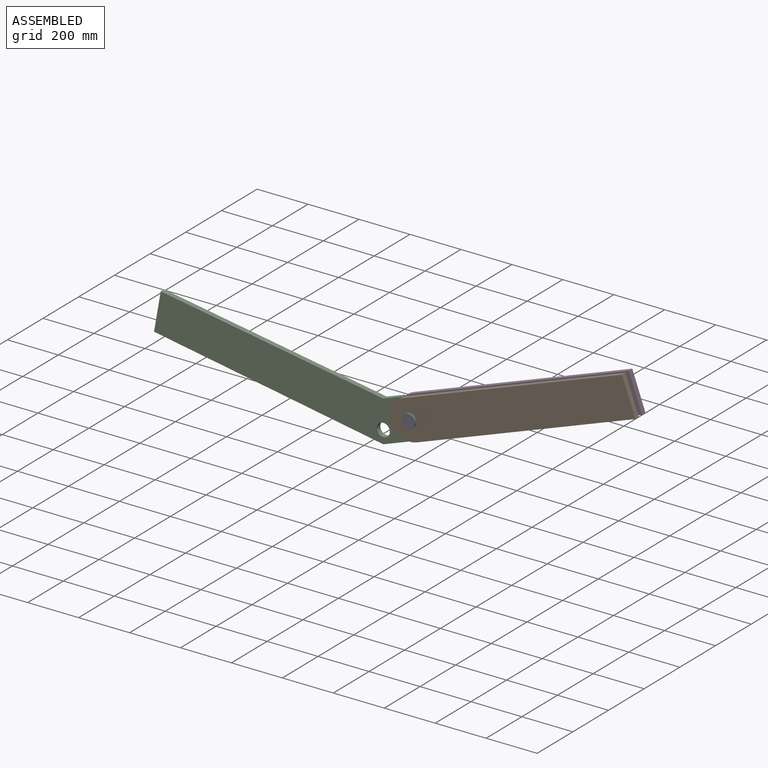
[diagram: assembled view]
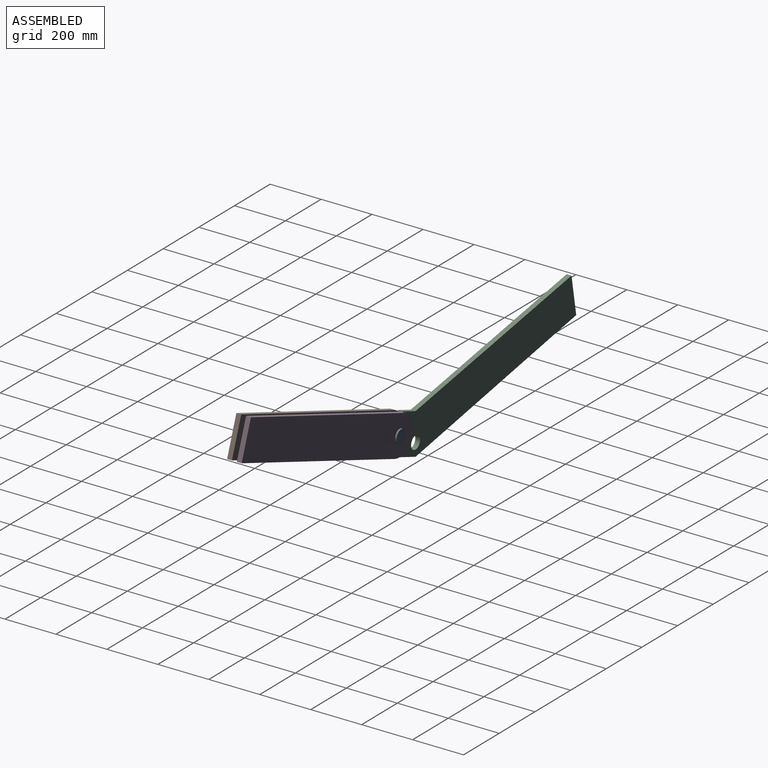
[diagram: assembled view, second angle]
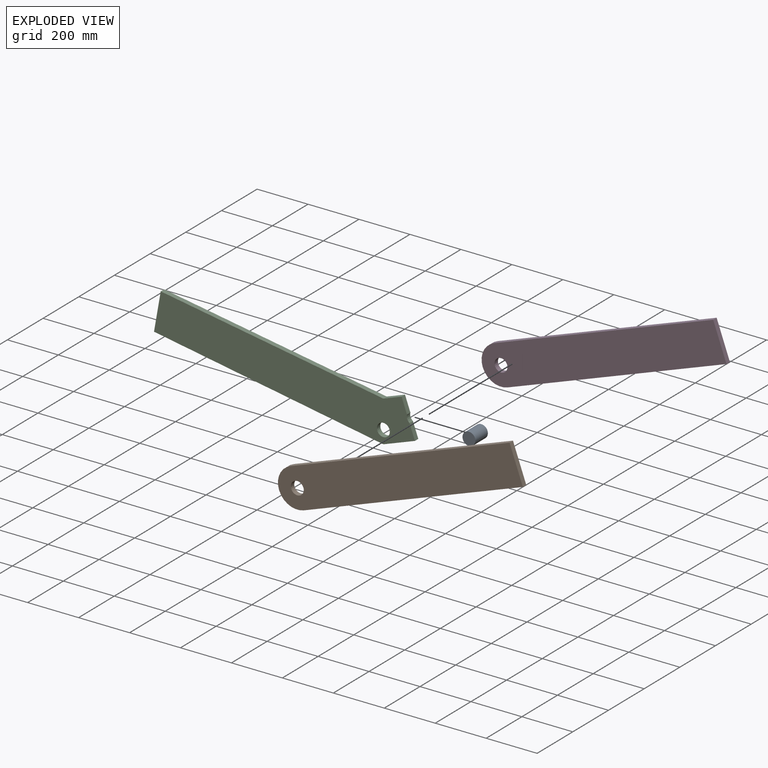
[diagram: exploded view]
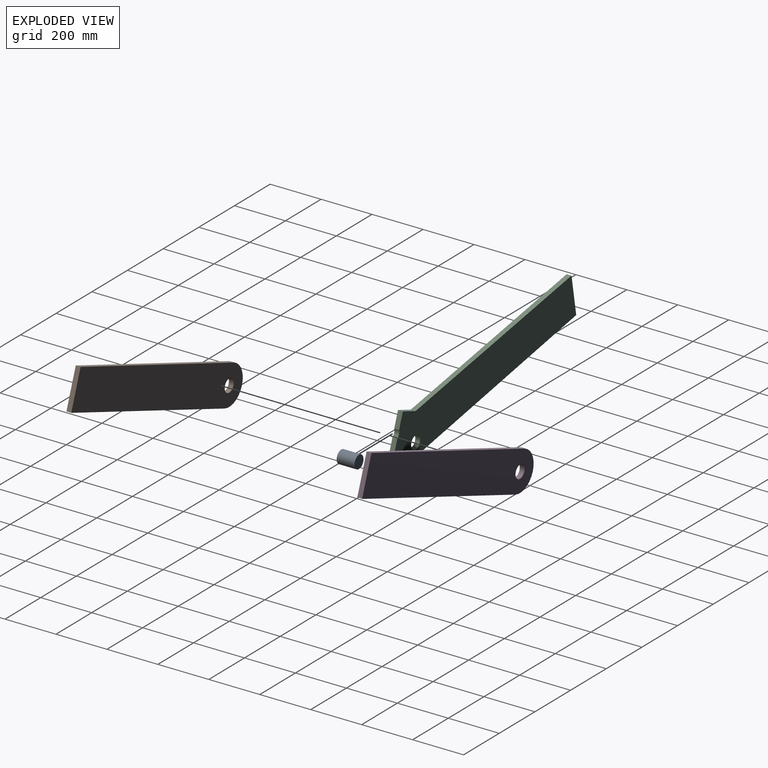
[diagram: exploded view, second angle]
ASSEMBLY  parts=4 mates=3
PART A: 3 faces, bbox 50.8x69.9x50.8 mm
  f0: cylinder r=25.4mm len=69.85mm, axis (0,1,0), area 11147.6mm2, adj f1,f2
  f1: plane 50.8x50.8mm, normal (0,-1,0), area 2026.8mm2, adj f0
  f2: plane 50.8x50.8mm, normal (0,1,0), area 2026.8mm2, adj f0
PART B: 7 faces, bbox 961.5x19.1x460.5 mm
  f0: plane 143.21x52.12mm, normal (0.94,0,0.34), area 2903.2mm2, adj f1,f4,f5,f6
  f1: plane 859.26x312.74mm, normal (-0.34,0,0.94), area 17419.3mm2, adj f0,f2,f5,f6
  f2: cylinder r=76.2mm len=147.8mm, axis (0,-1,0), area 4560.4mm2, adj f1,f4,f5,f6
  f3: cylinder r=25.4mm len=50.8mm, axis (0,-1,0), area 3040.2mm2, adj f5,f6
  f4: plane 859.26x312.74mm, normal (0.34,0,-0.94), area 17419.3mm2, adj f0,f2,f5,f6
  f5: plane 961.52x460.55mm, normal (0,1,0), area 146448.5mm2, adj f0,f1,f2,f3,f4
  f6: plane 961.52x460.55mm, normal (0,-1,0), area 146448.5mm2, adj f0,f1,f2,f3,f4
PART C: 11 faces, bbox 1024.2x19.1x308.9 mm
  f0: plane 57.81x21.04mm, normal (0.94,0,0.34), area 1172mm2, adj f2,f3,f5,f10
  f1: plane 57.81x21.04mm, normal (0.94,0,0.34), area 1172mm2, adj f2,f3,f6,f10
  f2: plane 1024.24x308.87mm, normal (0,-1,0), area 154273.4mm2, adj f0,f1,f4,f5,f6,f7,f8,f9
  f3: plane 1024.24x308.87mm, normal (0,1,0), area 154273.4mm2, adj f0,f1,f4,f5,f6,f7,f8,f9
  f4: plane 900.51x158.78mm, normal (-0.17,0,-0.98), area 17419.3mm2, adj f2,f3,f5,f9
  f5: plane 123.73x45.03mm, normal (0.34,0,-0.94), area 2508.3mm2, adj f0,f2,f3,f4
  f6: plane 71.6x26.06mm, normal (-0.34,0,0.94), area 1451.6mm2, adj f1,f2,f3,f7
  f7: plane 874.04x146.69mm, normal (0.17,0,0.99), area 16883.4mm2, adj f2,f3,f6,f9
  f8: cylinder r=25.4mm len=50.8mm, axis (0,1,0), area 3040.2mm2, adj f2,f3
  f9: plane 150.08x26.46mm, normal (-0.98,0,0.17), area 2903.2mm2, adj f2,f3,f4,f7
  f10: cylinder r=25.4mm len=27.58mm, axis (0,1,0), area 596.2mm2, adj f0,f1,f2,f3
PART D: same geometry as B
PLACE A t=(-117.15,9.52,-123.73)mm
PLACE B t=(-117.15,-28.57,-123.73)mm
PLACE C t=(-117.15,9.53,-123.73)mm
PLACE D t=(-117.15,9.53,-123.73)mm
MATE fastened D.f2 <-> C.f10  axis (0,-1,0) through (0,9.53,0)mm
MATE fastened A.f0 <-> C.f10  axis (0,1,0) through (0,0,0)mm
MATE fastened B.f2 <-> C.f10  axis (0,1,0) through (0,-9.52,0)mm
